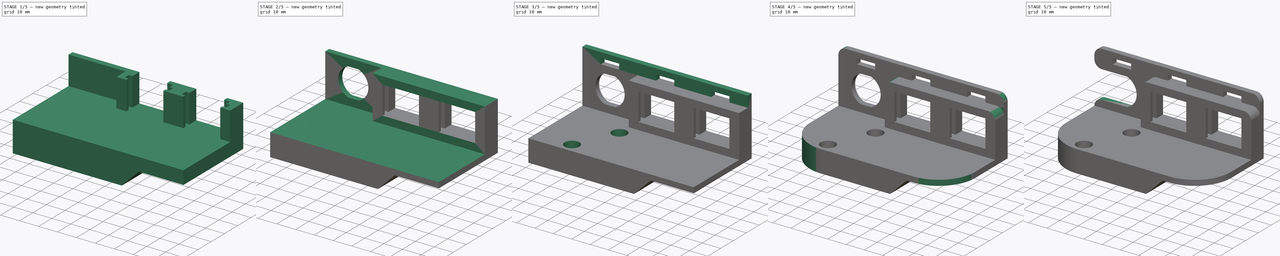
[diagram: build sequence overview — one tinted view per stage of 5, left to right]
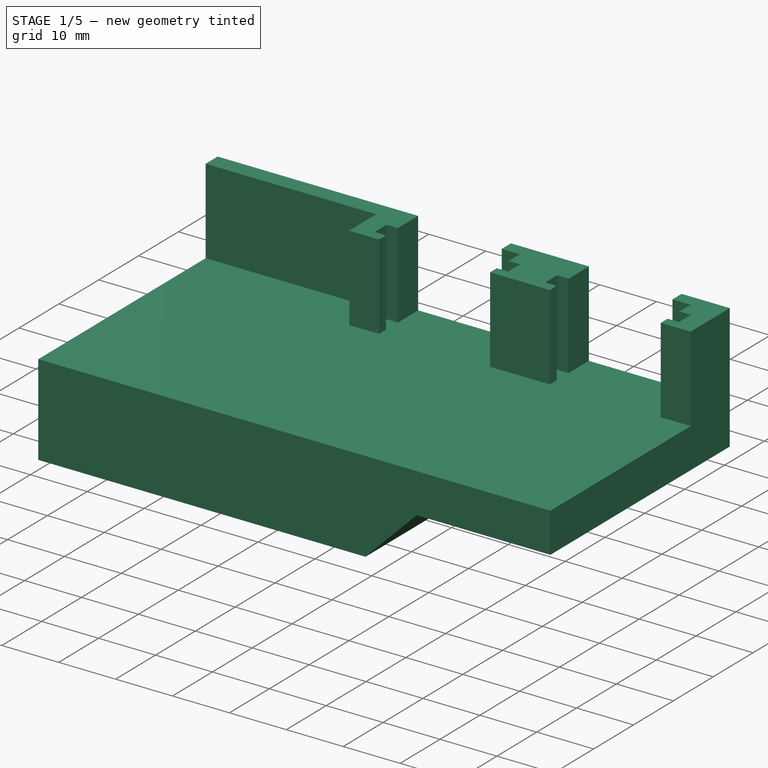
[diagram: stage 1 of 5 — iso view after this stage's code; geometry added in this stage tinted green]
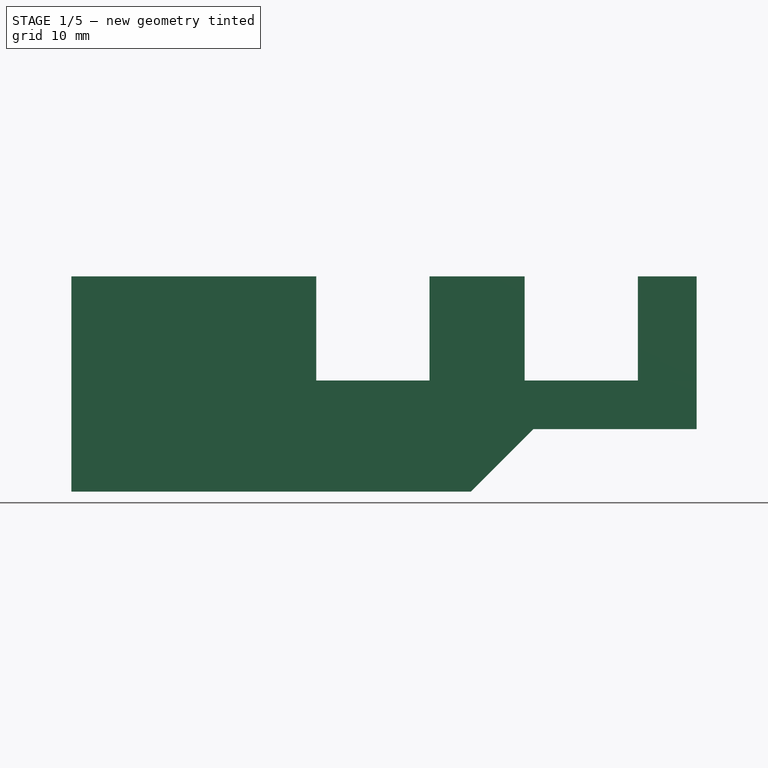
[diagram: stage 1 of 5 — front view after this stage's code; geometry added in this stage tinted green]
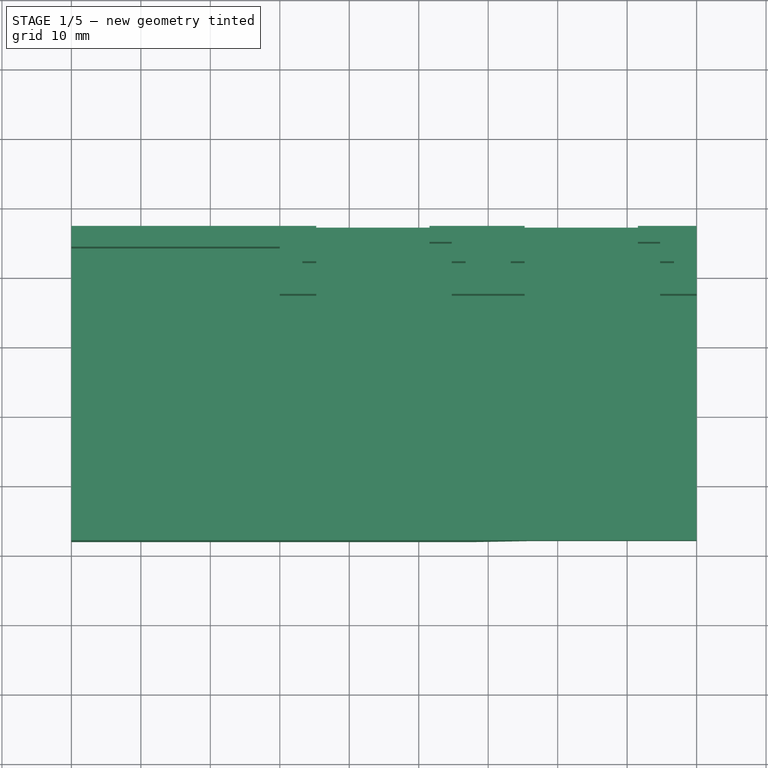
[diagram: stage 1 of 5 — top view after this stage's code; geometry added in this stage tinted green]
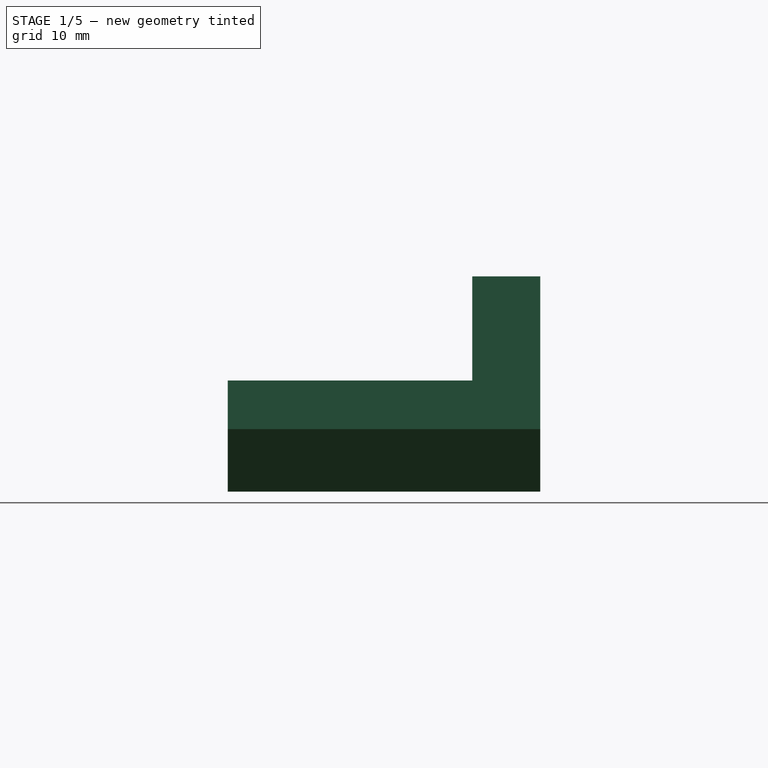
[diagram: stage 1 of 5 — right view after this stage's code; geometry added in this stage tinted green]
FCSTD DOCUMENT  (FreeCAD 1.0R39109 (Git))
Label: ARM_SideTarget_ConnectorMount_v2.1
License: All rights reserved
LicenseURL: https://en.wikipedia.org/wiki/All_rights_reserved
objects: Sketcher::SketchObject×11, PartDesign::Pocket×7, PartDesign::Pad×4, PartDesign::Fillet×4, PartDesign::Chamfer×1, PartDesign::Body×1
note: 71 computed .brp shape members not serialized (recipe doc carries the construction recipe); baked Part::Feature solids carry a one-line shape summary decoded from their .brp

FEATURE [Sketcher::SketchObject] Sketch
  ArcFitTolerance = 1e-06
  AttachmentSupport = -> [XY_Plane]
  FullyConstrained = true
  MakeInternals = false
  MapMode = 5
  sketch-geometry (14):
    g0: Circle [constr] CenterX=0 CenterY=0 CenterZ=0 NormalX=0 NormalY=0 NormalZ=1 AngleXU=0 Radius=1.6
    g1: LineSegment [constr] StartX=0 StartY=0 StartZ=0 EndX=-10.3 EndY=0 EndZ=0
    g2: LineSegment [constr] StartX=-10.3 StartY=0 StartZ=0 EndX=-10.3 EndY=-22.2 EndZ=0
    g3: LineSegment [constr] StartX=-10.3 StartY=-22.2 StartZ=0 EndX=0 EndY=-22.2 EndZ=0
    g4: LineSegment [constr] StartX=0 StartY=-22.2 StartZ=0 EndX=0 EndY=0 EndZ=0
    g5: Circle [constr] CenterX=-10.3 CenterY=-22.2 CenterZ=0 NormalX=0 NormalY=0 NormalZ=1 AngleXU=0 Radius=1.6
    g6: LineSegment [constr] StartX=0 StartY=0 StartZ=0 EndX=0 EndY=17 EndZ=0
    g7: LineSegment [constr] StartX=0 StartY=17 StartZ=0 EndX=27.9 EndY=17 EndZ=0
    g8: LineSegment [constr] StartX=27.9 StartY=17 StartZ=0 EndX=36.9 EndY=17 EndZ=0
    g9: LineSegment [constr] StartX=0 StartY=17 StartZ=0 EndX=-30 EndY=17 EndZ=0
    g10: LineSegment StartX=-30 StartY=17 StartZ=0 EndX=-30 EndY=-28 EndZ=0
    g11: LineSegment StartX=-30 StartY=-28 StartZ=0 EndX=60 EndY=-28 EndZ=0
    g12: LineSegment StartX=60 StartY=-28 StartZ=0 EndX=60 EndY=17 EndZ=0
    g13: LineSegment StartX=60 StartY=17 StartZ=0 EndX=-30 EndY=17 EndZ=0
  constraints (38):
    c: Diameter(g0) = 3.2
    c: Coincident(g0,g-1)
    c: Coincident(g1,g2)
    c: Coincident(g2,g3)
    c: Coincident(g3,g4)
    c: Coincident(g4,g1)
    c: Horizontal(g1)
    c: Horizontal(g3)
    c: Vertical(g2)
    c: Vertical(g4)
    c: Distance(g2,g4) = 10.3
    c: Distance(g1,g3) = 22.2
    c: Coincident(g1,g0)
    c: Diameter(g5) = 3.2
    c: Coincident(g5,g2)
    c: Distance(g6) = 17
    c: Coincident(g6,g0)
    c: PointOnObject(g6,g-2)
    c: Distance(g7) = 27.9
    c: Coincident(g7,g6)
    c: Horizontal(g7)
    c: Distance(g8) = 9
    c: Coincident(g8,g7)
    c: Horizontal(g8)
    c: Distance(g9) = 30
    c: Coincident(g9,g6)
    c: Horizontal(g9)
    c: Coincident(g10,g11)
    c: Coincident(g11,g12)
    c: Coincident(g12,g13)
    c: Coincident(g13,g10)
    c: Vertical(g10)
    c: Vertical(g12)
    c: Horizontal(g11)
    c: Horizontal(g13)
    c: Distance(g10,g12) = 90
    c: Distance(g11,g13) = 45
    c: Coincident(g10,g9)
FEATURE [PartDesign::Pad] Pad
  Direction = (0,0,1)
  Length = 16
  Length2 = 10
  Profile = -> Sketch
  ReferenceAxis = -> Sketch [N_Axis]
  Refine = true
  Suppressed = false
  Type = 0
FEATURE [Sketcher::SketchObject] Sketch001
  ArcFitTolerance = 1e-06
  AttachmentSupport = -> [Pad]
  ExternalGeometry = -> [Pad]
  FullyConstrained = true
  MakeInternals = false
  MapMode = 5
  Placement = pos=(0,-28,0) rot=(1,0,0;1.5708rad)
  sketch-geometry (7):
    g0: LineSegment StartX=60 StartY=0 StartZ=0 EndX=60 EndY=9 EndZ=0
    g1: LineSegment [constr] StartX=0 StartY=0 StartZ=0 EndX=27.5 EndY=0 EndZ=0
    g2: LineSegment [constr] StartX=27.5 StartY=0 StartZ=0 EndX=27.5 EndY=9 EndZ=0
    g3: LineSegment [constr] StartX=27.5 StartY=9 StartZ=0 EndX=36.5 EndY=9 EndZ=0
    g4: LineSegment StartX=27.5 StartY=0 StartZ=0 EndX=36.5 EndY=9 EndZ=0
    g5: LineSegment StartX=36.5 StartY=9 StartZ=0 EndX=60 EndY=9 EndZ=0
    g6: LineSegment StartX=27.5 StartY=0 StartZ=0 EndX=60 EndY=0 EndZ=0
  constraints (18):
    c: Distance(g0) = 9
    c: Coincident(g0,g-4)
    c: PointOnObject(g0,g-4)
    c: Distance(g1) = 27.5
    c: Coincident(g1,g-1)
    c: PointOnObject(g1,g-1)
    c: Distance(g2) = 9
    c: Coincident(g2,g1)
    c: Vertical(g2)
    c: Distance(g3) = 9
    c: Coincident(g3,g2)
    c: Horizontal(g3)
    c: Coincident(g4,g1)
    c: Coincident(g4,g3)
    c: Coincident(g5,g3)
    c: Coincident(g5,g0)
    c: Coincident(g6,g1)
    c: Coincident(g6,g0)
FEATURE [PartDesign::Pocket] Pocket
  BaseFeature = -> Pad
  Direction = (0,1,-2e-16)
  Length = 60
  Length2 = 5
  Profile = -> Sketch001
  ReferenceAxis = -> Sketch001 [N_Axis]
  Refine = true
  Suppressed = false
  Type = 0
FEATURE [Sketcher::SketchObject] Sketch002
  ArcFitTolerance = 1e-06
  AttachmentSupport = -> [Pocket]
  ExternalGeometry = -> [Pocket]
  FullyConstrained = true
  MakeInternals = false
  MapMode = 5
  Placement = pos=(0,0,16) rot=(0,0,1;0rad)
  sketch-geometry (50):
    g0: LineSegment [constr] StartX=60 StartY=17 StartZ=0 EndX=30 EndY=17 EndZ=0
    g1: LineSegment [constr] StartX=30 StartY=17 StartZ=0 EndX=30 EndY=7.2 EndZ=0
    g2: LineSegment [constr] StartX=30 StartY=7.2 StartZ=0 EndX=60 EndY=7.2 EndZ=0
    g3: LineSegment [constr] StartX=60 StartY=7.2 StartZ=0 EndX=60 EndY=17 EndZ=0
    g4: LineSegment [constr] StartX=30 StartY=17 StartZ=0 EndX=0 EndY=17 EndZ=0
    g5: LineSegment [constr] StartX=0 StartY=17 StartZ=0 EndX=0 EndY=7.2 EndZ=0
    g6: LineSegment [constr] StartX=0 StartY=7.2 StartZ=0 EndX=30 EndY=7.2 EndZ=0
    g7: LineSegment [constr] StartX=30 StartY=7.2 StartZ=0 EndX=30 EndY=17 EndZ=0
    g8: LineSegment [constr] StartX=0 StartY=17 StartZ=0 EndX=-30 EndY=17 EndZ=0
    g9: LineSegment [constr] StartX=-30 StartY=17 StartZ=0 EndX=-30 EndY=14 EndZ=0
    g10: LineSegment [constr] StartX=-30 StartY=14 StartZ=0 EndX=0 EndY=14 EndZ=0
    g11: LineSegment [constr] StartX=0 StartY=14 StartZ=0 EndX=0 EndY=17 EndZ=0
    g12: LineSegment [constr] StartX=45 StartY=7.2 StartZ=0 EndX=54.75 EndY=7.2 EndZ=0
    g13: LineSegment StartX=54.75 StartY=7.2 StartZ=0 EndX=54.75 EndY=8.9 EndZ=0
    g14: LineSegment StartX=54.75 StartY=8.9 StartZ=0 EndX=56.75 EndY=8.9 EndZ=0
    g15: LineSegment StartX=56.75 StartY=8.9 StartZ=0 EndX=56.75 EndY=11.9 EndZ=0
    g16: LineSegment StartX=56.75 StartY=11.9 StartZ=0 EndX=54.75 EndY=11.9 EndZ=0
    g17: LineSegment StartX=54.75 StartY=11.9 StartZ=0 EndX=54.75 EndY=14.7 EndZ=0
    g18: LineSegment StartX=54.75 StartY=14.7 StartZ=0 EndX=51.55 EndY=14.7 EndZ=0
    g19: LineSegment StartX=51.55 StartY=14.7 StartZ=0 EndX=51.55 EndY=17 EndZ=0
    g20: LineSegment [constr] StartX=45 StartY=7.2 StartZ=0 EndX=35.25 EndY=7.2 EndZ=0
    g21: LineSegment StartX=35.25 StartY=7.2 StartZ=0 EndX=35.25 EndY=8.9 EndZ=0
    g22: LineSegment StartX=35.25 StartY=8.9 StartZ=0 EndX=33.25 EndY=8.9 EndZ=0
    g23: LineSegment StartX=33.25 StartY=8.9 StartZ=0 EndX=33.25 EndY=11.9 EndZ=0
    g24: LineSegment StartX=33.25 StartY=11.9 StartZ=0 EndX=35.25 EndY=11.9 EndZ=0
    g25: LineSegment StartX=35.25 StartY=11.9 StartZ=0 EndX=35.25 EndY=17 EndZ=0
    g26: LineSegment [constr] StartX=15 StartY=7.2 StartZ=0 EndX=24.75 EndY=7.2 EndZ=0
    g27: LineSegment StartX=24.75 StartY=7.2 StartZ=0 EndX=24.75 EndY=8.9 EndZ=0
    g28: LineSegment StartX=24.75 StartY=8.9 StartZ=0 EndX=26.75 EndY=8.9 EndZ=0
    g29: LineSegment StartX=26.75 StartY=8.9 StartZ=0 EndX=26.75 EndY=11.9 EndZ=0
    g30: LineSegment StartX=26.75 StartY=11.9 StartZ=0 EndX=24.75 EndY=11.9 EndZ=0
    g31: LineSegment StartX=24.75 StartY=11.9 StartZ=0 EndX=24.75 EndY=14.7 EndZ=0
    g32: LineSegment StartX=24.75 StartY=14.7 StartZ=0 EndX=21.55 EndY=14.7 EndZ=0
    g33: LineSegment StartX=21.55 StartY=14.7 StartZ=0 EndX=21.55 EndY=17 EndZ=0
    g34: LineSegment [constr] StartX=15 StartY=7.2 StartZ=0 EndX=5.25 EndY=7.2 EndZ=0
    g35: LineSegment StartX=5.25 StartY=7.2 StartZ=0 EndX=5.25 EndY=8.9 EndZ=0
    g36: LineSegment StartX=5.25 StartY=8.9 StartZ=0 EndX=3.25 EndY=8.9 EndZ=0
    g37: LineSegment StartX=3.25 StartY=8.9 StartZ=0 EndX=3.25 EndY=11.9 EndZ=0
    g38: LineSegment StartX=3.25 StartY=11.9 StartZ=0 EndX=5.25 EndY=11.9 EndZ=0
    g39: LineSegment StartX=5.25 StartY=11.9 StartZ=0 EndX=5.25 EndY=17 EndZ=0
    g40: LineSegment StartX=54.75 StartY=7.2 StartZ=0 EndX=60 EndY=7.2 EndZ=0
    g41: LineSegment StartX=60 StartY=7.2 StartZ=0 EndX=60 EndY=17 EndZ=0
    g42: LineSegment StartX=60 StartY=17 StartZ=0 EndX=51.55 EndY=17 EndZ=0
    g43: LineSegment StartX=35.25 StartY=17 StartZ=0 EndX=21.55 EndY=17 EndZ=0
    g44: LineSegment StartX=24.75 StartY=7.2 StartZ=0 EndX=35.25 EndY=7.2 EndZ=0
    g45: LineSegment StartX=5.25 StartY=7.2 StartZ=0 EndX=0 EndY=7.2 EndZ=0
    g46: LineSegment StartX=0 StartY=7.2 StartZ=0 EndX=0 EndY=14 EndZ=0
    g47: LineSegment StartX=0 StartY=14 StartZ=0 EndX=-30 EndY=14 EndZ=0
    g48: LineSegment StartX=-30 StartY=14 StartZ=0 EndX=-30 EndY=17 EndZ=0
    g49: LineSegment StartX=-30 StartY=17 StartZ=0 EndX=5.25 EndY=17 EndZ=0
  constraints (137):
    c: Coincident(g0,g1)
    c: Coincident(g1,g2)
    c: Coincident(g2,g3)
    c: Coincident(g3,g0)
    c: Horizontal(g0)
    c: Horizontal(g2)
    c: Vertical(g1)
    c: Vertical(g3)
    c: Distance(g1,g3) = 30
    c: Distance(g0,g2) = 9.8
    c: Coincident(g0,g-3)
    c: Coincident(g4,g5)
    c: Coincident(g5,g6)
    c: Coincident(g6,g7)
    c: Coincident(g7,g4)
    c: Horizontal(g4)
    c: Horizontal(g6)
    c: Vertical(g5)
    c: Vertical(g7)
    c: Distance(g4,g6) = 9.8
    c: Coincident(g4,g0)
    c: PointOnObject(g5,g-2)
    c: Coincident(g8,g9)
    c: Coincident(g9,g10)
    c: Coincident(g10,g11)
    c: Coincident(g11,g8)
    c: Horizontal(g8)
    c: Horizontal(g10)
    c: Vertical(g9)
    c: Vertical(g11)
    c: Distance(g9,g11) = 30
    c: Distance(g8,g10) = 3
    c: Coincident(g8,g4)
    c: Distance(g12) = 9.75
    c: Symmetric(g2,g2,g12)
    c: PointOnObject(g12,g2)
    c: Distance(g13) = 1.7
    c: Coincident(g13,g12)
    c: Vertical(g13)
    c: Distance(g14) = 2
    c: Coincident(g14,g13)
    c: Horizontal(g14)
    c: Distance(g15) = 3
    c: Coincident(g15,g14)
    c: Vertical(g15)
    c: Distance(g16) = 2
    c: Coincident(g16,g15)
    c: Horizontal(g16)
    c: Distance(g17) = 2.8
    c: Coincident(g17,g16)
    c: Vertical(g17)
    c: Distance(g18) = 3.2
    c: Coincident(g18,g17)
    c: Horizontal(g18)
    c: Coincident(g19,g18)
    c: PointOnObject(g19,g0)
    c: Vertical(g19)
    c: Distance(g20) = 9.75
    c: Symmetric(g2,g2,g20)
    c: PointOnObject(g20,g2)
    c: Distance(g21) = 1.7
    c: Coincident(g21,g20)
    c: Vertical(g21)
    c: Distance(g22) = 2
    c: Coincident(g22,g21)
    c: Horizontal(g22)
    c: Distance(g23) = 3
    c: Coincident(g23,g22)
    c: Vertical(g23)
    c: Distance(g24) = 2
    c: Coincident(g24,g23)
    c: Horizontal(g24)
    c: Coincident(g25,g24)
    c: PointOnObject(g25,g0)
    c: Vertical(g25)
    c: Distance(g26) = 9.75
    c: Symmetric(g6,g6,g26)
    c: PointOnObject(g26,g6)
    c: Distance(g27) = 1.7
    c: Coincident(g27,g26)
    c: Vertical(g27)
    c: Distance(g28) = 2
    c: Coincident(g28,g27)
    c: Horizontal(g28)
    c: Distance(g29) = 3
    c: Coincident(g29,g28)
    c: Vertical(g29)
    c: Distance(g30) = 2
    c: Coincident(g30,g29)
    c: Horizontal(g30)
    c: Distance(g31) = 2.8
    c: Coincident(g31,g30)
    c: Vertical(g31)
    c: Distance(g32) = 3.2
    c: Coincident(g32,g31)
    c: Horizontal(g32)
    c: Coincident(g33,g32)
    c: PointOnObject(g33,g4)
    c: Vertical(g33)
    c: Distance(g34) = 9.75
    c: Symmetric(g6,g6,g34)
    c: PointOnObject(g34,g6)
    c: Distance(g35) = 1.7
    c: Coincident(g35,g34)
    c: Vertical(g35)
    c: Distance(g36) = 2
    c: Coincident(g36,g35)
    c: Horizontal(g36)
    c: Distance(g37) = 3
    c: Coincident(g37,g36)
    c: Vertical(g37)
    c: Distance(g38) = 2
    c: Coincident(g38,g37)
    c: Horizontal(g38)
    c: Coincident(g39,g38)
    c: PointOnObject(g39,g4)
    c: Vertical(g39)
    c: Coincident(g40,g12)
    c: Coincident(g40,g2)
    c: Coincident(g41,g2)
    c: Coincident(g41,g0)
    c: Coincident(g42,g0)
    c: Coincident(g42,g19)
    c: Coincident(g43,g25)
    c: Coincident(g43,g33)
    c: Coincident(g44,g26)
    c: Coincident(g44,g20)
    c: Coincident(g45,g34)
    c: Coincident(g45,g5)
    c: Coincident(g46,g5)
    c: Coincident(g46,g10)
    c: Coincident(g47,g10)
    c: Coincident(g47,g9)
    c: Coincident(g48,g9)
    c: Coincident(g48,g8)
    c: Coincident(g49,g8)
    c: Coincident(g49,g39)
FEATURE [PartDesign::Pad] Pad001
  BaseFeature = -> Pocket
  Direction = (0,0,1)
  Length = 15
  Length2 = 10
  Profile = -> Sketch002
  ReferenceAxis = -> Sketch002 [N_Axis]
  Refine = true
  Suppressed = false
  Type = 0
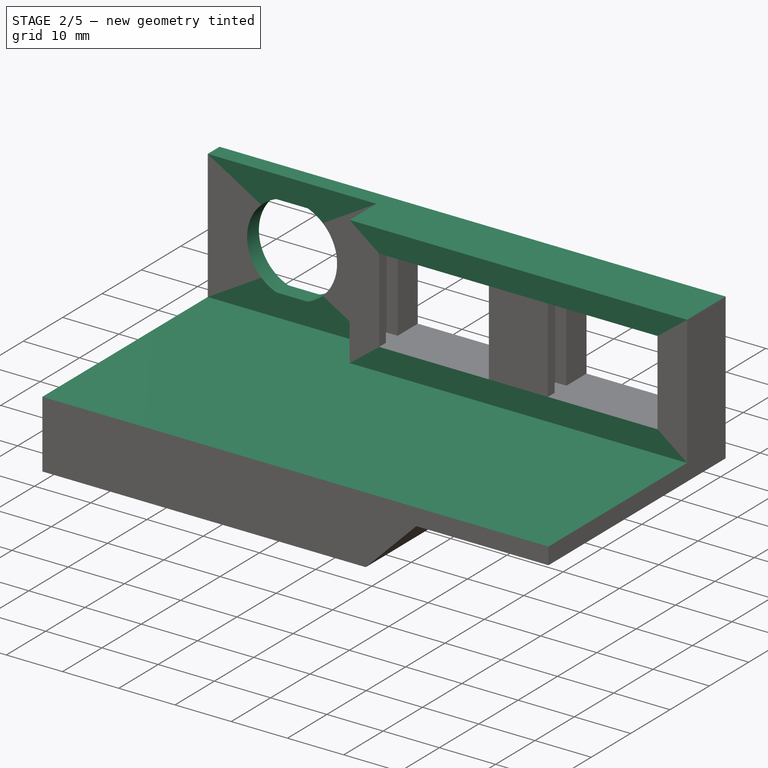
[diagram: stage 2 of 5 — iso view after this stage's code; geometry added in this stage tinted green]
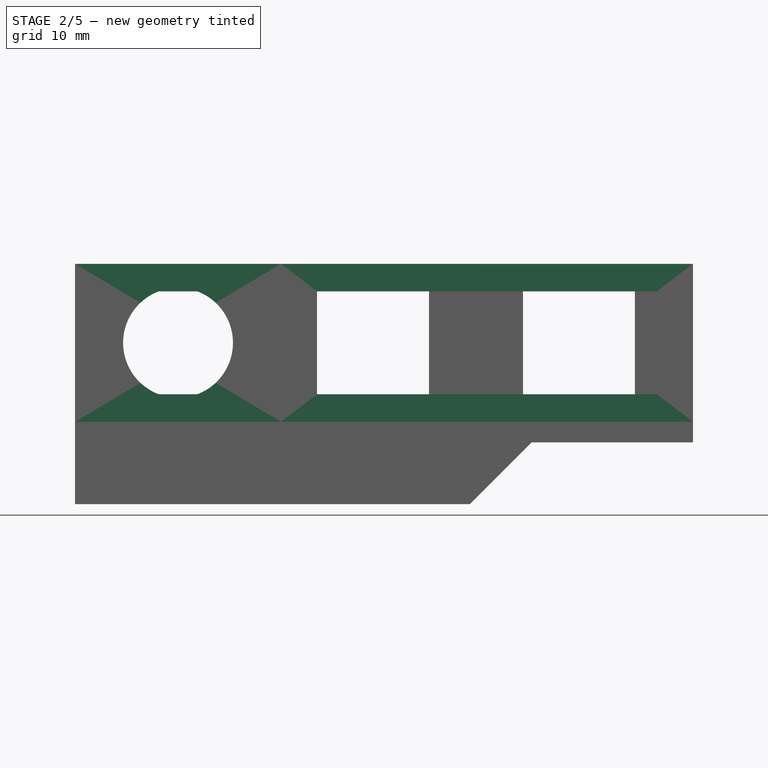
[diagram: stage 2 of 5 — front view after this stage's code; geometry added in this stage tinted green]
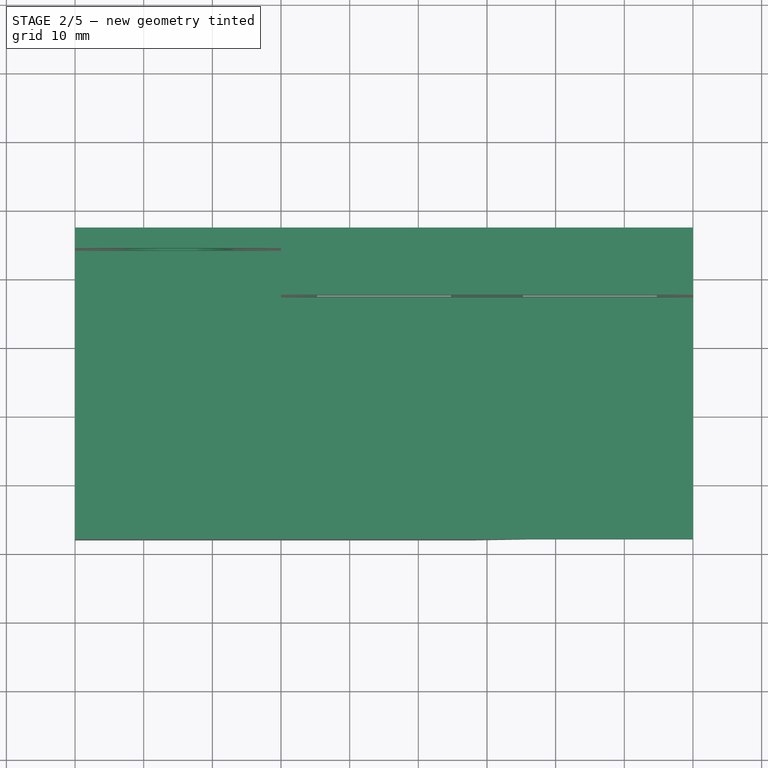
[diagram: stage 2 of 5 — top view after this stage's code; geometry added in this stage tinted green]
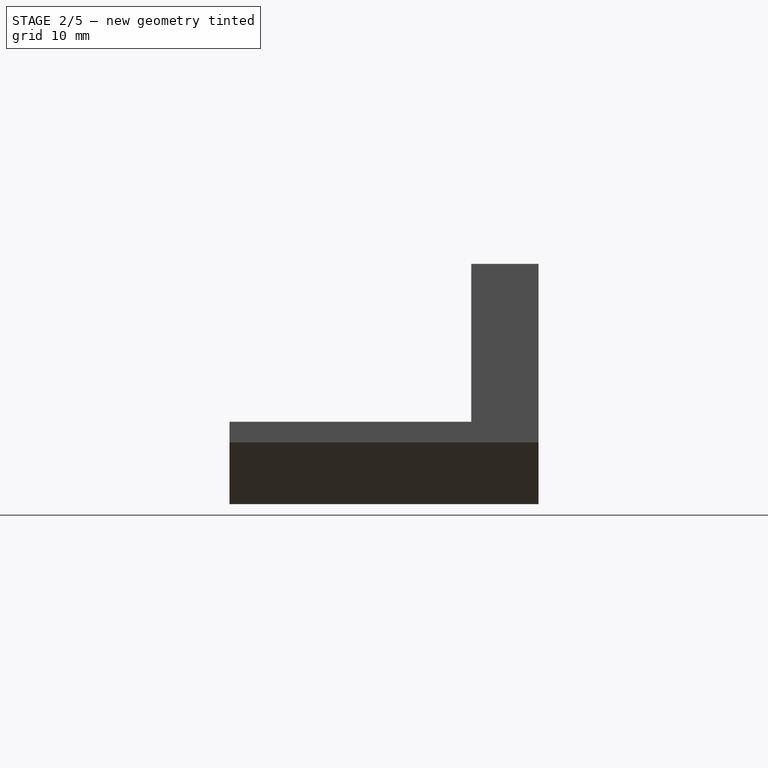
[diagram: stage 2 of 5 — right view after this stage's code; geometry added in this stage tinted green]
FEATURE [Sketcher::SketchObject] Sketch003
  ArcFitTolerance = 1e-06
  AttachmentSupport = -> [Pad001]
  ExternalGeometry = -> [Pad001]
  FullyConstrained = true
  MakeInternals = false
  MapMode = 5
  Placement = pos=(0,0,16) rot=(0,0,1;0rad)
  sketch-geometry (6):
    g0: LineSegment StartX=-30 StartY=-28 StartZ=0 EndX=-30 EndY=14 EndZ=0
    g1: LineSegment StartX=-30 StartY=14 StartZ=0 EndX=0 EndY=14 EndZ=0
    g2: LineSegment StartX=0 StartY=14 StartZ=0 EndX=0 EndY=7.2 EndZ=0
    g3: LineSegment StartX=0 StartY=7.2 StartZ=0 EndX=60 EndY=7.2 EndZ=0
    g4: LineSegment StartX=60 StartY=7.2 StartZ=0 EndX=60 EndY=-28 EndZ=0
    g5: LineSegment StartX=60 StartY=-28 StartZ=0 EndX=-30 EndY=-28 EndZ=0
  constraints (12):
    c: Coincident(g0,g-3)
    c: Coincident(g0,g-3)
    c: Coincident(g1,g0)
    c: Coincident(g1,g-4)
    c: Coincident(g2,g1)
    c: Coincident(g2,g-4)
    c: Coincident(g3,g2)
    c: Coincident(g3,g-5)
    c: Coincident(g4,g3)
    c: Coincident(g4,g-5)
    c: Coincident(g5,g4)
    c: Coincident(g5,g0)
FEATURE [PartDesign::Pocket] Pocket001
  BaseFeature = -> Pad001
  Direction = (0,0,-1)
  Length = 4
  Length2 = 5
  Profile = -> Sketch003
  ReferenceAxis = -> Sketch003 [N_Axis]
  Refine = true
  Suppressed = false
  Type = 0
FEATURE [Sketcher::SketchObject] Sketch004
  ArcFitTolerance = 1e-06
  AttachmentSupport = -> [Pocket001]
  ExternalGeometry = -> [Pocket001]
  FullyConstrained = true
  MakeInternals = false
  MapMode = 5
  Placement = pos=(0,0,31) rot=(0,0,1;0rad)
  sketch-geometry (6):
    g0: LineSegment StartX=-30 StartY=17 StartZ=0 EndX=60 EndY=17 EndZ=0
    g1: LineSegment StartX=60 StartY=17 StartZ=0 EndX=60 EndY=7.2 EndZ=0
    g2: LineSegment StartX=60 StartY=7.2 StartZ=0 EndX=0 EndY=7.2 EndZ=0
    g3: LineSegment StartX=0 StartY=7.2 StartZ=0 EndX=0 EndY=14 EndZ=0
    g4: LineSegment StartX=0 StartY=14 StartZ=0 EndX=-30 EndY=14 EndZ=0
    g5: LineSegment StartX=-30 StartY=14 StartZ=0 EndX=-30 EndY=17 EndZ=0
  constraints (12):
    c: Coincident(g0,g-5)
    c: Coincident(g0,g-3)
    c: Coincident(g1,g0)
    c: Coincident(g1,g-3)
    c: Coincident(g2,g1)
    c: Coincident(g2,g-4)
    c: Coincident(g3,g2)
    c: Coincident(g3,g-4)
    c: Coincident(g4,g3)
    c: Coincident(g4,g-5)
    c: Coincident(g5,g4)
    c: Coincident(g5,g0)
FEATURE [PartDesign::Pad] Pad002
  BaseFeature = -> Pocket001
  Direction = (0,0,1)
  Length = 4
  Length2 = 10
  Profile = -> Sketch004
  ReferenceAxis = -> Sketch004 [N_Axis]
  Refine = true
  Suppressed = false
  Type = 0
FEATURE [Sketcher::SketchObject] Sketch005
  ArcFitTolerance = 1e-06
  AttachmentSupport = -> [Pad002]
  ExternalGeometry = -> [Pad002]
  FullyConstrained = false
  MakeInternals = false
  MapMode = 5
  Placement = pos=(0,14,0) rot=(1,0,0;1.5708rad)
  sketch-geometry (6):
    g0: LineSegment [constr] StartX=-15 StartY=35 StartZ=0 EndX=-15 EndY=23.5 EndZ=0
    g1: ArcOfCircle CenterX=-15 CenterY=23.5 CenterZ=0 NormalX=0 NormalY=0 NormalZ=1 AngleXU=0 Radius=8 StartAngle=5.06781 EndAngle=7.49856
    g2: LineSegment StartX=-17.7839 StartY=16 StartZ=0 EndX=-12.2161 EndY=16 EndZ=0
    g3: LineSegment StartX=-12.2161 StartY=31 StartZ=0 EndX=-17.7839 EndY=31 EndZ=0
    g4: GeomPoint [constr] X=-15 Y=23.5 Z=0
    g5: ArcOfCircle CenterX=-15 CenterY=23.5 CenterZ=0 NormalX=0 NormalY=0 NormalZ=1 AngleXU=0 Radius=8 StartAngle=1.92622 EndAngle=4.35697
  constraints (15):
    c: Distance(g0) = 11.5
    c: Symmetric(g-3,g-3,g0)
    c: Vertical(g0)
    c: Diameter(g1) = 16
    c: Coincident(g1,g0)
    c: Horizontal(g2)
    c: Horizontal(g3)
    c: Coincident(g4,g0)
    c: PointOnObject(g3,g5)
    c: Coincident(g5,g2)
    c: Coincident(g1,g2)
    c: Equal(g1,g5)
    c: Coincident(g1,g3)
    c: PointOnObject(g5,g3)
    c: Coincident(g1,g5)
FEATURE [PartDesign::Pocket] Pocket002
  BaseFeature = -> Pad002
  Direction = (0,1,-2e-16)
  Length = 5
  Length2 = 5
  Profile = -> Sketch005
  ReferenceAxis = -> Sketch005 [N_Axis]
  Refine = true
  Suppressed = false
  Type = 0
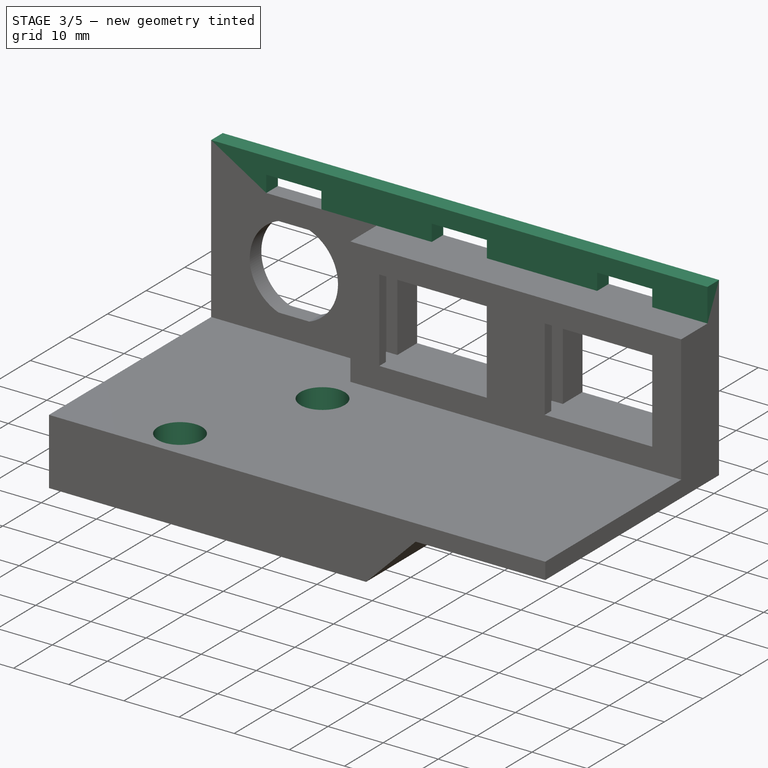
[diagram: stage 3 of 5 — iso view after this stage's code; geometry added in this stage tinted green]
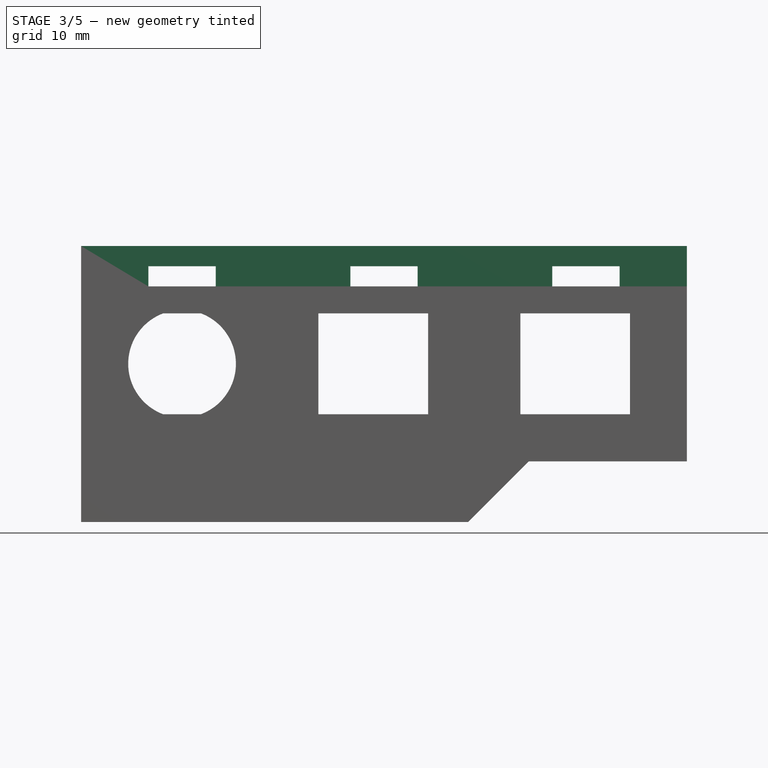
[diagram: stage 3 of 5 — front view after this stage's code; geometry added in this stage tinted green]
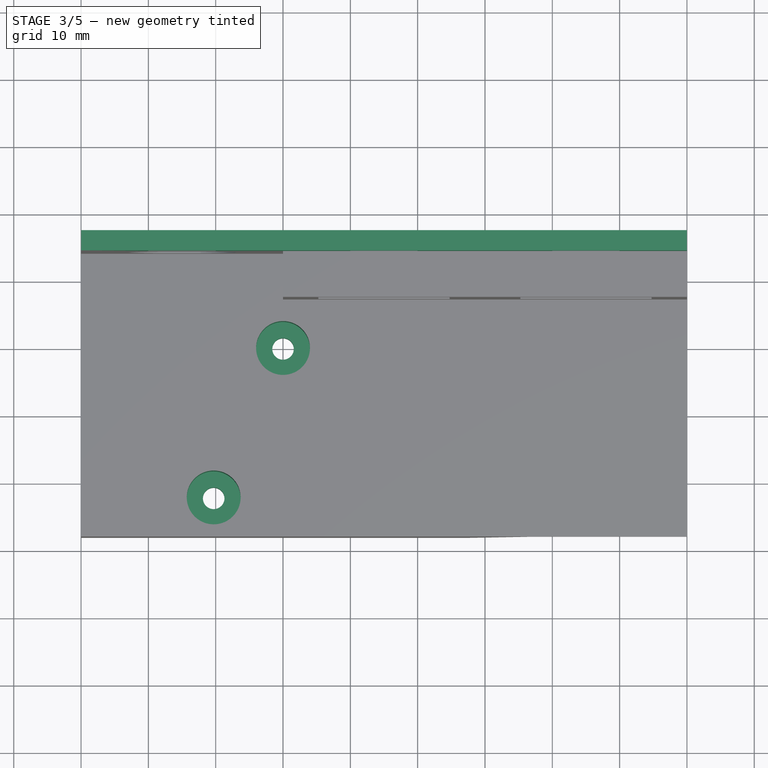
[diagram: stage 3 of 5 — top view after this stage's code; geometry added in this stage tinted green]
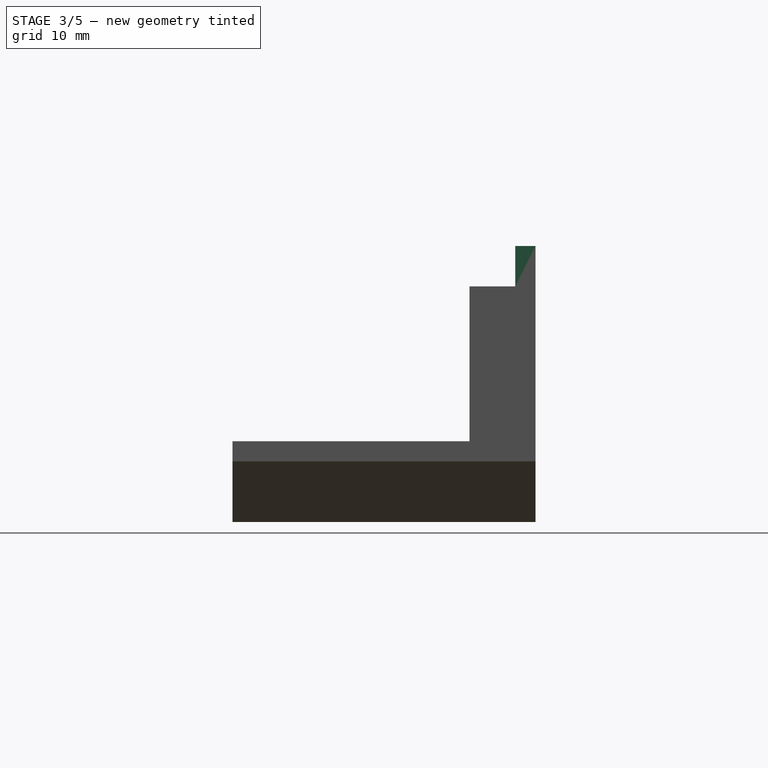
[diagram: stage 3 of 5 — right view after this stage's code; geometry added in this stage tinted green]
FEATURE [Sketcher::SketchObject] Sketch006
  ArcFitTolerance = 1e-06
  AttachmentSupport = -> [Pocket002]
  ExternalGeometry = -> [Pocket002]
  FullyConstrained = true
  MakeInternals = false
  MapMode = 5
  Placement = pos=(0,0,35) rot=(0,0,1;0rad)
  sketch-geometry (4):
    g0: LineSegment StartX=-30 StartY=17 StartZ=0 EndX=-30 EndY=14 EndZ=0
    g1: LineSegment StartX=-30 StartY=14 StartZ=0 EndX=60 EndY=14 EndZ=0
    g2: LineSegment StartX=60 StartY=14 StartZ=0 EndX=60 EndY=17 EndZ=0
    g3: LineSegment StartX=60 StartY=17 StartZ=0 EndX=-30 EndY=17 EndZ=0
  constraints (11):
    c: Coincident(g0,g1)
    c: Coincident(g1,g2)
    c: Coincident(g2,g3)
    c: Coincident(g3,g0)
    c: Vertical(g0)
    c: Vertical(g2)
    c: Horizontal(g1)
    c: Horizontal(g3)
    c: Distance(g0,g2) = 90
    c: Distance(g1,g3) = 3
    c: Coincident(g0,g-3)
FEATURE [PartDesign::Pad] Pad003
  BaseFeature = -> Pocket002
  Direction = (0,0,1)
  Length = 6
  Length2 = 10
  Profile = -> Sketch006
  ReferenceAxis = -> Sketch006 [N_Axis]
  Refine = true
  Suppressed = false
  Type = 0
FEATURE [Sketcher::SketchObject] Sketch007
  ArcFitTolerance = 1e-06
  AttachmentSupport = -> [Pad003]
  ExternalGeometry = -> [Pad003]
  FullyConstrained = true
  MakeInternals = false
  MapMode = 5
  Placement = pos=(0,14,0) rot=(1,0,0;1.5708rad)
  sketch-geometry (21):
    g0: LineSegment [constr] StartX=-30 StartY=41 StartZ=0 EndX=0 EndY=41 EndZ=0
    g1: LineSegment [constr] StartX=0 StartY=41 StartZ=0 EndX=30 EndY=41 EndZ=0
    g2: LineSegment [constr] StartX=30 StartY=41 StartZ=0 EndX=60 EndY=41 EndZ=0
    g3: LineSegment [constr] StartX=-15 StartY=41 StartZ=0 EndX=-15 EndY=36.5 EndZ=0
    g4: LineSegment [constr] StartX=15 StartY=41 StartZ=0 EndX=15 EndY=36.5 EndZ=0
    g5: LineSegment [constr] StartX=45 StartY=41 StartZ=0 EndX=45 EndY=36.5 EndZ=0
    g6: LineSegment StartX=-20 StartY=35 StartZ=0 EndX=-10 EndY=35 EndZ=0
    g7: LineSegment StartX=-10 StartY=35 StartZ=0 EndX=-10 EndY=38 EndZ=0
    g8: LineSegment StartX=-10 StartY=38 StartZ=0 EndX=-20 EndY=38 EndZ=0
    g9: LineSegment StartX=-20 StartY=38 StartZ=0 EndX=-20 EndY=35 EndZ=0
    g10: GeomPoint [constr] X=-15 Y=36.5 Z=0
    g11: LineSegment StartX=10 StartY=35 StartZ=0 EndX=20 EndY=35 EndZ=0
    g12: LineSegment StartX=20 StartY=35 StartZ=0 EndX=20 EndY=38 EndZ=0
    g13: LineSegment StartX=20 StartY=38 StartZ=0 EndX=10 EndY=38 EndZ=0
    g14: LineSegment StartX=10 StartY=38 StartZ=0 EndX=10 EndY=35 EndZ=0
    g15: GeomPoint [constr] X=15 Y=36.5 Z=0
    g16: LineSegment StartX=40 StartY=35 StartZ=0 EndX=50 EndY=35 EndZ=0
    g17: LineSegment StartX=50 StartY=35 StartZ=0 EndX=50 EndY=38 EndZ=0
    g18: LineSegment StartX=50 StartY=38 StartZ=0 EndX=40 EndY=38 EndZ=0
    g19: LineSegment StartX=40 StartY=38 StartZ=0 EndX=40 EndY=35 EndZ=0
    g20: GeomPoint [constr] X=45 Y=36.5 Z=0
  constraints (53):
    c: Distance(g0) = 30
    c: Coincident(g0,g-3)
    c: PointOnObject(g0,g-3)
    c: Distance(g1) = 30
    c: Coincident(g1,g0)
    c: PointOnObject(g1,g-3)
    c: Coincident(g2,g1)
    c: Coincident(g2,g-3)
    c: Distance(g3) = 4.5
    c: Symmetric(g0,g0,g3)
    c: Vertical(g3)
    c: Distance(g4) = 4.5
    c: Symmetric(g1,g1,g4)
    c: Vertical(g4)
    c: Distance(g5) = 4.5
    c: Symmetric(g2,g2,g5)
    c: Vertical(g5)
    c: Coincident(g6,g7)
    c: Coincident(g7,g8)
    c: Coincident(g8,g9)
    c: Coincident(g9,g6)
    c: Horizontal(g6)
    c: Horizontal(g8)
    c: Vertical(g7)
    c: Vertical(g9)
    c: Symmetric(g8,g6,g10)
    c: Distance(g7,g9) = 10
    c: Distance(g6,g8) = 3
    c: Coincident(g10,g3)
    c: Coincident(g11,g12)
    c: Coincident(g12,g13)
    c: Coincident(g13,g14)
    c: Coincident(g14,g11)
    c: Horizontal(g11)
    c: Horizontal(g13)
    c: Vertical(g12)
    c: Vertical(g14)
    c: Symmetric(g13,g11,g15)
    c: Distance(g12,g14) = 10
    c: Distance(g11,g13) = 3
    c: Coincident(g15,g4)
    c: Coincident(g16,g17)
    c: Coincident(g17,g18)
    c: Coincident(g18,g19)
    c: Coincident(g19,g16)
    c: Horizontal(g16)
    c: Horizontal(g18)
    c: Vertical(g17)
    c: Vertical(g19)
    c: Symmetric(g18,g16,g20)
    c: Distance(g17,g19) = 10
    c: Distance(g16,g18) = 3
    c: Coincident(g20,g5)
FEATURE [PartDesign::Pocket] Pocket003
  BaseFeature = -> Pad003
  Direction = (0,1,-2e-16)
  Length = 5
  Length2 = 5
  Profile = -> Sketch007
  ReferenceAxis = -> Sketch007 [N_Axis]
  Refine = true
  Suppressed = false
  Type = 0
FEATURE [Sketcher::SketchObject] Sketch008
  ArcFitTolerance = 1e-06
  AttachmentSupport = -> [Pocket003]
  FullyConstrained = true
  MakeInternals = false
  MapMode = 5
  Placement = pos=(0,0,12) rot=(0,0,1;0rad)
  sketch-geometry (6):
    g0: Circle CenterX=0 CenterY=0 CenterZ=0 NormalX=0 NormalY=0 NormalZ=1 AngleXU=0 Radius=1.6
    g1: LineSegment [constr] StartX=0 StartY=0 StartZ=0 EndX=-10.3 EndY=0 EndZ=0
    g2: LineSegment [constr] StartX=-10.3 StartY=0 StartZ=0 EndX=-10.3 EndY=-22.2 EndZ=0
    g3: LineSegment [constr] StartX=-10.3 StartY=-22.2 StartZ=0 EndX=0 EndY=-22.2 EndZ=0
    g4: LineSegment [constr] StartX=0 StartY=-22.2 StartZ=0 EndX=0 EndY=0 EndZ=0
    g5: Circle CenterX=-10.3 CenterY=-22.2 CenterZ=0 NormalX=0 NormalY=0 NormalZ=1 AngleXU=0 Radius=1.6
  constraints (15):
    c: Diameter(g0) = 3.2
    c: Coincident(g0,g-1)
    c: Coincident(g1,g2)
    c: Coincident(g2,g3)
    c: Coincident(g3,g4)
    c: Coincident(g4,g1)
    c: Horizontal(g1)
    c: Horizontal(g3)
    c: Vertical(g2)
    c: Vertical(g4)
    c: Distance(g2,g4) = 10.3
    c: Distance(g1,g3) = 22.2
    c: Coincident(g1,g0)
    c: Diameter(g5) = 3.2
    c: Coincident(g5,g2)
FEATURE [PartDesign::Pocket] Pocket004
  BaseFeature = -> Pocket003
  Direction = (0,0,-1)
  Length = 20
  Length2 = 5
  Profile = -> Sketch008
  ReferenceAxis = -> Sketch008 [N_Axis]
  Refine = true
  Suppressed = false
  Type = 0
FEATURE [Sketcher::SketchObject] Sketch009
  ArcFitTolerance = 1e-06
  AttachmentSupport = -> [Pocket004]
  ExternalGeometry = -> [Pocket004]
  FullyConstrained = true
  MakeInternals = false
  MapMode = 5
  Placement = pos=(0,0,12) rot=(0,0,1;0rad)
  sketch-geometry (2):
    g0: Circle CenterX=-10.3 CenterY=-22.2 CenterZ=0 NormalX=0 NormalY=0 NormalZ=1 AngleXU=0 Radius=4
    g1: Circle CenterX=0 CenterY=0 CenterZ=0 NormalX=0 NormalY=0 NormalZ=1 AngleXU=0 Radius=4
  constraints (4):
    c: Diameter(g0) = 8
    c: Coincident(g0,g-3)
    c: Diameter(g1) = 8
    c: Coincident(g1,g-1)
FEATURE [PartDesign::Pocket] Pocket005
  BaseFeature = -> Pocket004
  Direction = (0,0,-1)
  Length = 8
  Length2 = 5
  Profile = -> Sketch009
  ReferenceAxis = -> Sketch009 [N_Axis]
  Refine = true
  Suppressed = false
  Type = 0
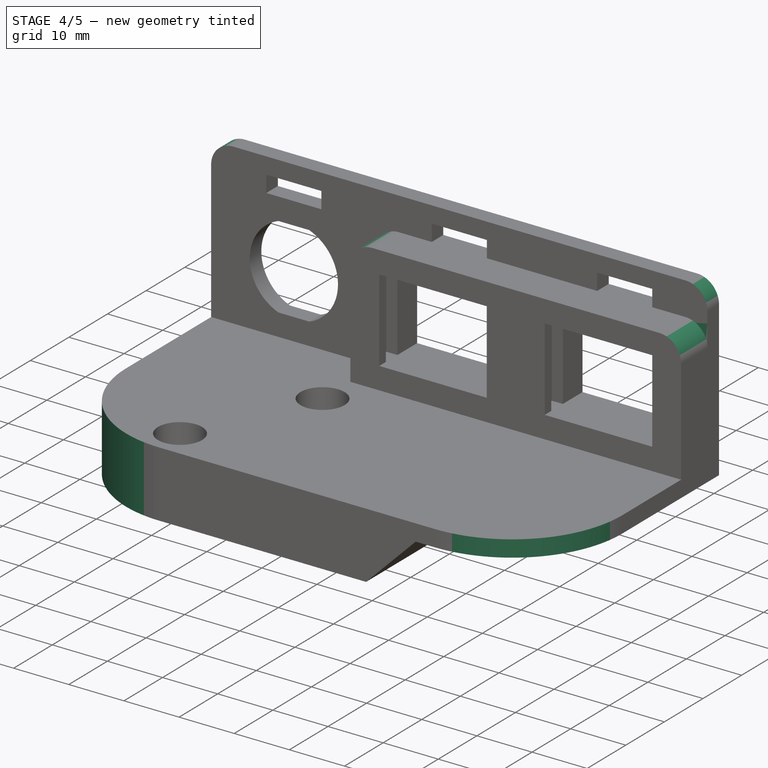
[diagram: stage 4 of 5 — iso view after this stage's code; geometry added in this stage tinted green]
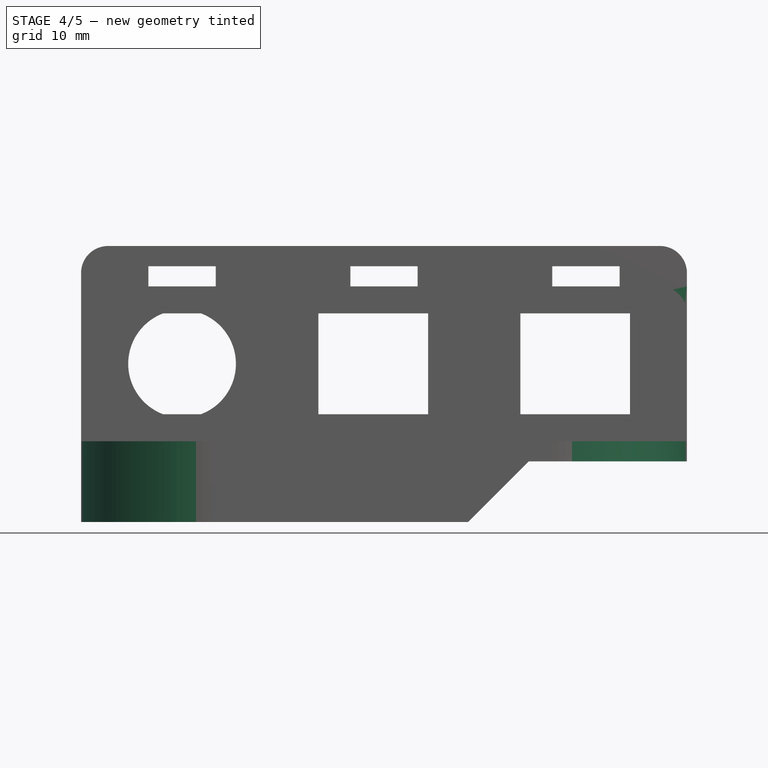
[diagram: stage 4 of 5 — front view after this stage's code; geometry added in this stage tinted green]
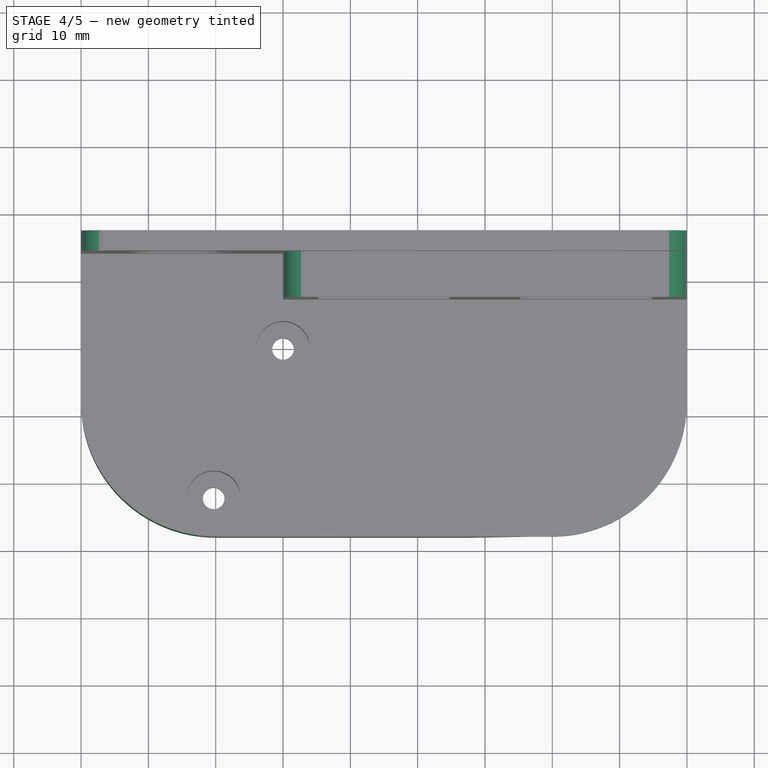
[diagram: stage 4 of 5 — top view after this stage's code; geometry added in this stage tinted green]
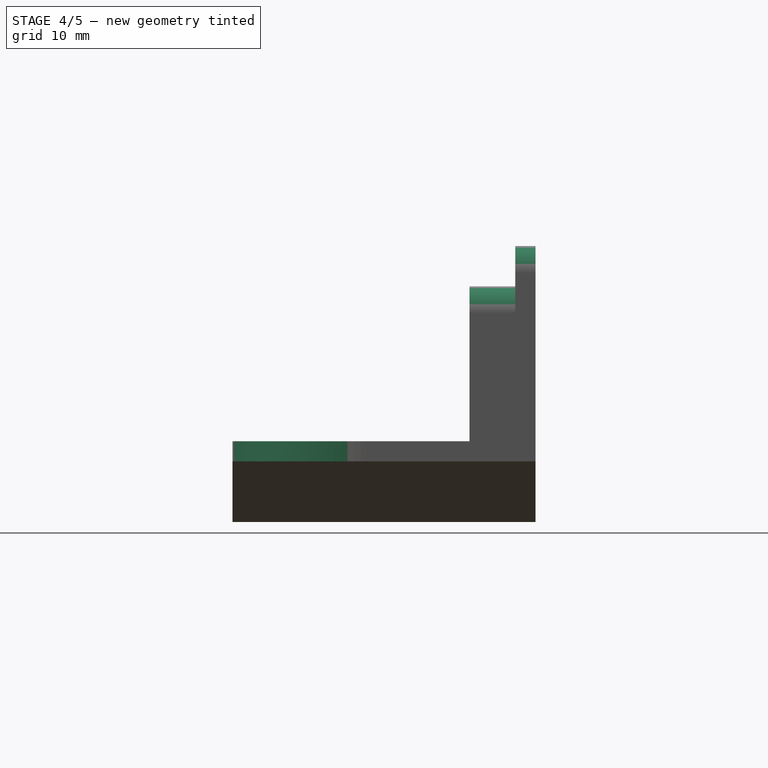
[diagram: stage 4 of 5 — right view after this stage's code; geometry added in this stage tinted green]
FEATURE [PartDesign::Fillet] Fillet
  Base = -> Pocket005 [Edge75,Edge66]
  BaseFeature = -> Pocket005
  Radius = 4
  Refine = true
  SupportTransform = false
  Suppressed = false
  UseAllEdges = false
FEATURE [PartDesign::Fillet] Fillet001
  Base = -> Fillet [Edge37,Edge132]
  BaseFeature = -> Fillet
  Radius = 4
  Refine = true
  SupportTransform = false
  Suppressed = false
  UseAllEdges = false
FEATURE [PartDesign::Fillet] Fillet002
  Base = -> Fillet001 [Edge57,Edge5]
  BaseFeature = -> Fillet001
  Radius = 20
  Refine = true
  SupportTransform = false
  Suppressed = false
  UseAllEdges = false
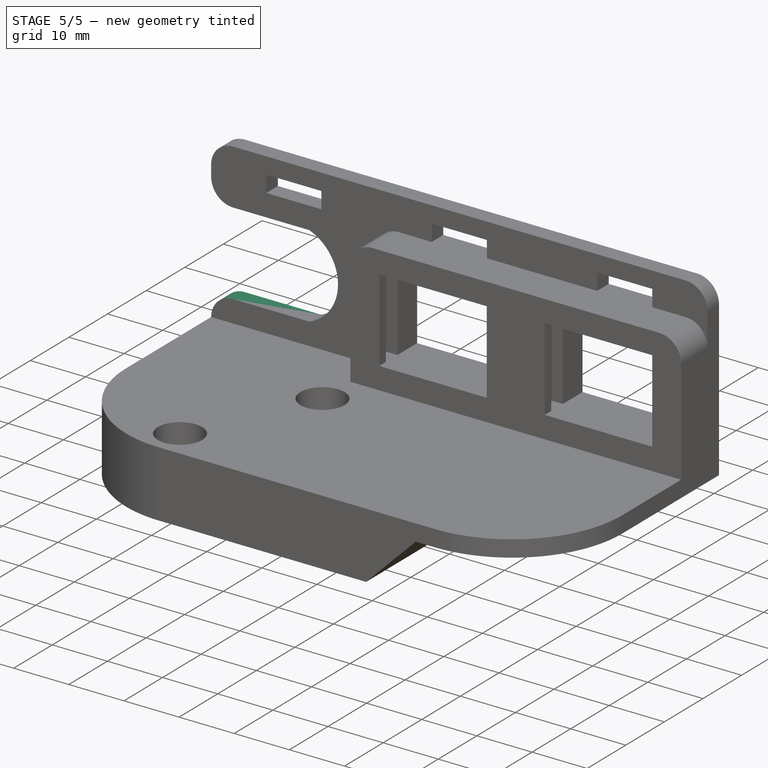
[diagram: stage 5 of 5 — iso view after this stage's code; geometry added in this stage tinted green]
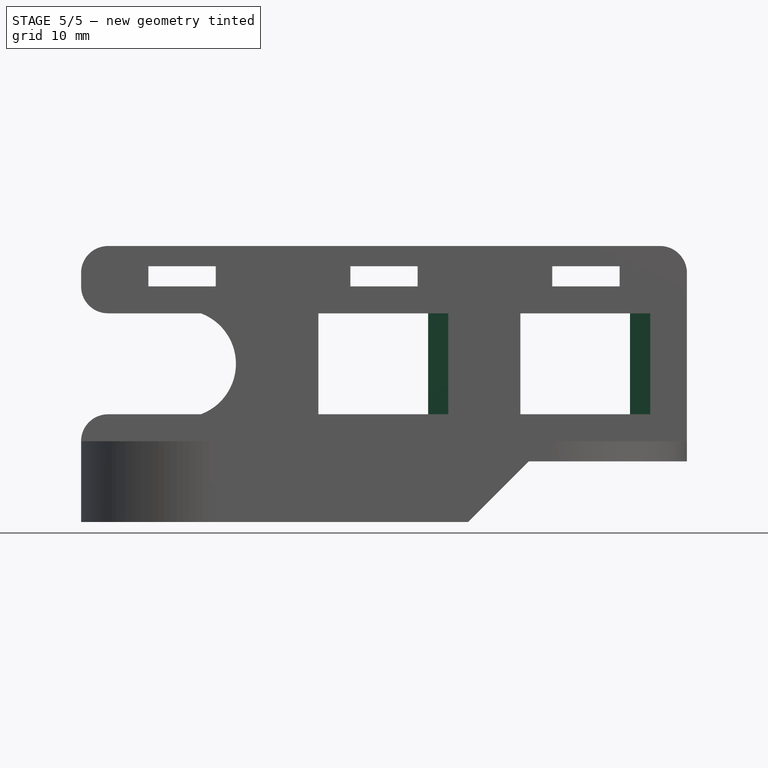
[diagram: stage 5 of 5 — front view after this stage's code; geometry added in this stage tinted green]
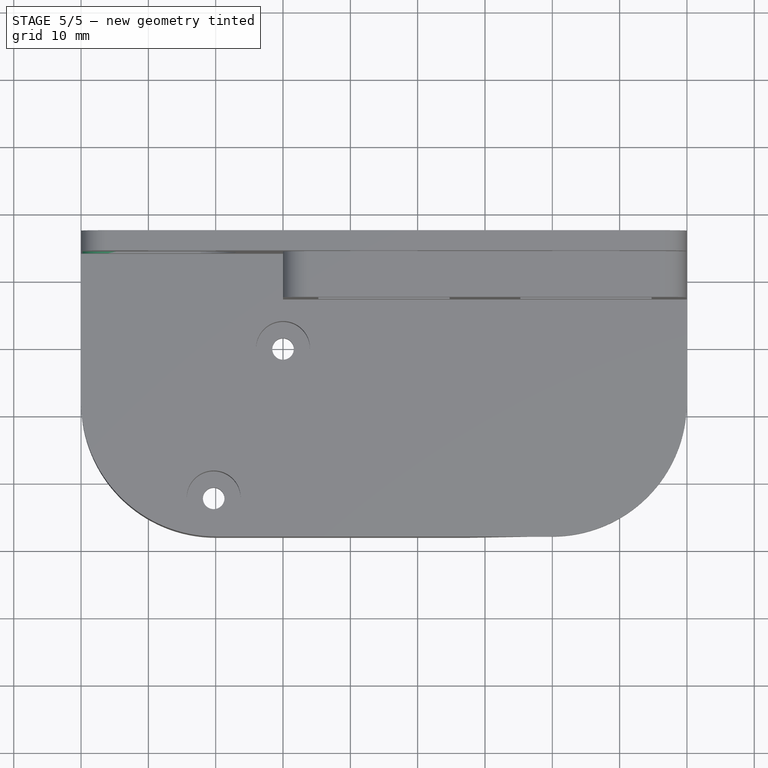
[diagram: stage 5 of 5 — top view after this stage's code; geometry added in this stage tinted green]
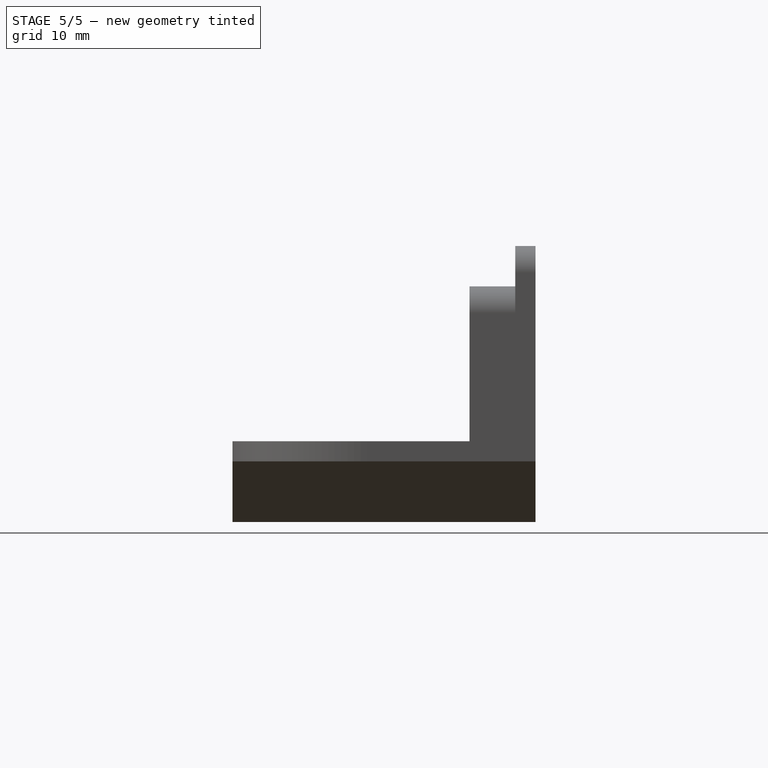
[diagram: stage 5 of 5 — right view after this stage's code; geometry added in this stage tinted green]
FEATURE [Sketcher::SketchObject] Sketch010
  ArcFitTolerance = 1e-06
  AttachmentSupport = -> [Fillet002]
  ExternalGeometry = -> [Fillet002]
  FullyConstrained = true
  MakeInternals = false
  MapMode = 5
  Placement = pos=(0,14,0) rot=(1,0,0;1.5708rad)
  sketch-geometry (6):
    g0: LineSegment [constr] StartX=-15 StartY=23.5 StartZ=0 EndX=-27 EndY=23.5 EndZ=0
    g1: LineSegment StartX=-36.2161 StartY=16 StartZ=0 EndX=-17.7839 EndY=16 EndZ=0
    g2: LineSegment StartX=-17.7839 StartY=16 StartZ=0 EndX=-17.7839 EndY=31 EndZ=0
    g3: LineSegment StartX=-17.7839 StartY=31 StartZ=0 EndX=-36.2161 EndY=31 EndZ=0
    g4: LineSegment StartX=-36.2161 StartY=31 StartZ=0 EndX=-36.2161 EndY=16 EndZ=0
    g5: GeomPoint [constr] X=-27 Y=23.5 Z=0
  constraints (14):
    c: Distance(g0) = 12
    c: Coincident(g0,g-3)
    c: Horizontal(g0)
    c: Coincident(g1,g2)
    c: Coincident(g2,g3)
    c: Coincident(g3,g4)
    c: Coincident(g4,g1)
    c: Horizontal(g1)
    c: Horizontal(g3)
    c: Vertical(g2)
    c: Vertical(g4)
    c: Symmetric(g3,g1,g5)
    c: Coincident(g5,g0)
    c: Coincident(g2,g-3)
FEATURE [PartDesign::Pocket] Pocket006
  BaseFeature = -> Fillet002
  Direction = (0,1,-2e-16)
  Length = 5
  Length2 = 5
  Profile = -> Sketch010
  ReferenceAxis = -> Sketch010 [N_Axis]
  Refine = true
  Suppressed = false
  Type = 0
FEATURE [PartDesign::Fillet] Fillet003
  Base = -> Pocket006 [Edge163,Edge93]
  BaseFeature = -> Pocket006
  Radius = 4
  Refine = true
  SupportTransform = false
  Suppressed = false
  UseAllEdges = false
FEATURE [PartDesign::Chamfer] Chamfer
  Angle = 45
  Base = -> Fillet003 [Edge99,Edge150]
  BaseFeature = -> Fillet003
  ChamferType = 1
  FlipDirection = false
  Refine = true
  Size = 2
  Size2 = 3
  SupportTransform = false
  Suppressed = false
  UseAllEdges = false
FEATURE [PartDesign::Body] Body
  AllowCompound = false
  Group = -> [Sketch,Pad,Sketch001,Pocket,Sketch002,Pad001,Sketch003,Pocket001,Sketch004,Pad002,Sketch005,Pocket002,Sketch006,Pad003,Sketch007,Pocket003,Sketch008,Pocket004,Sketch009,Pocket005,Fillet,Fillet001,Fillet002,Sketch010,Pocket006,Fillet003,Chamfer]
  Origin = -> Origin
  Tip = -> Chamfer
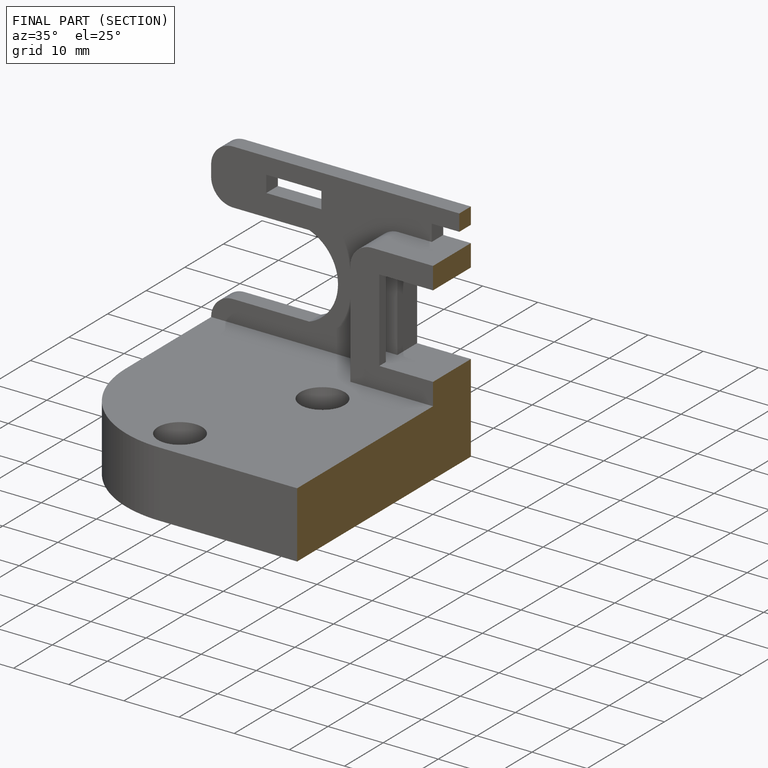
[diagram: finished part — half-section view (interior)]
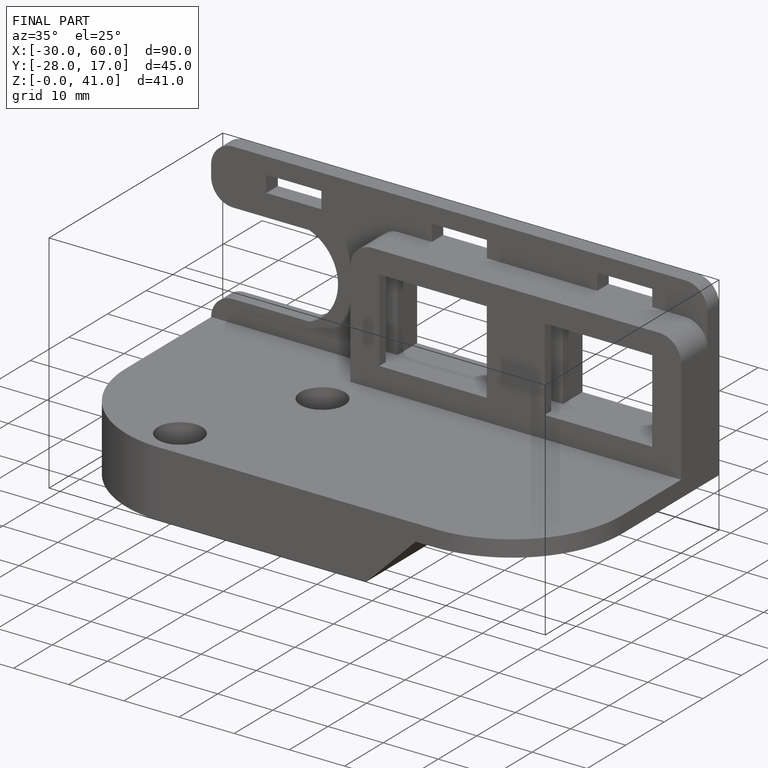
[diagram: finished part — iso view with bounding-box wireframe]
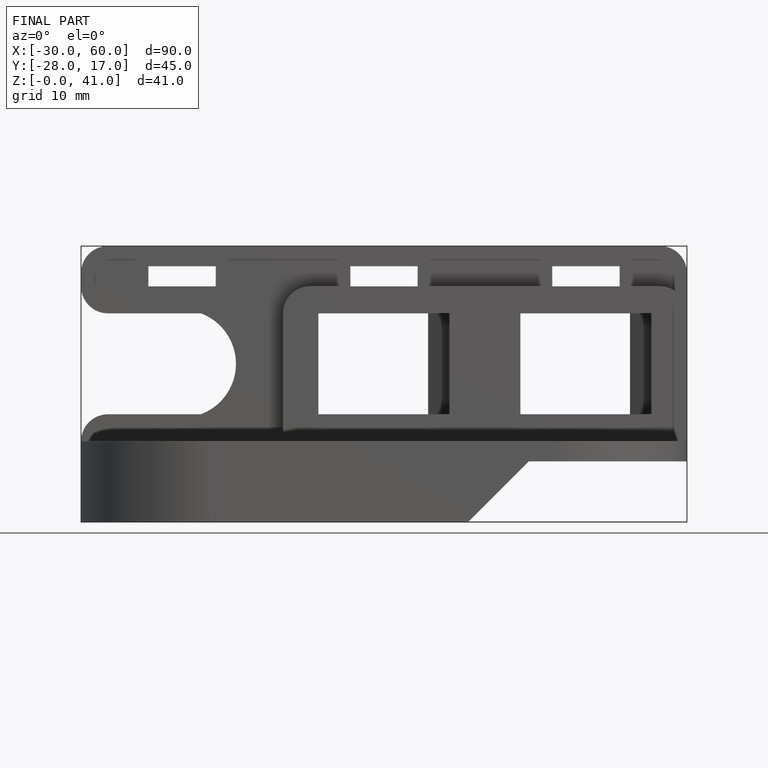
[diagram: finished part — front view with bounding-box wireframe]
